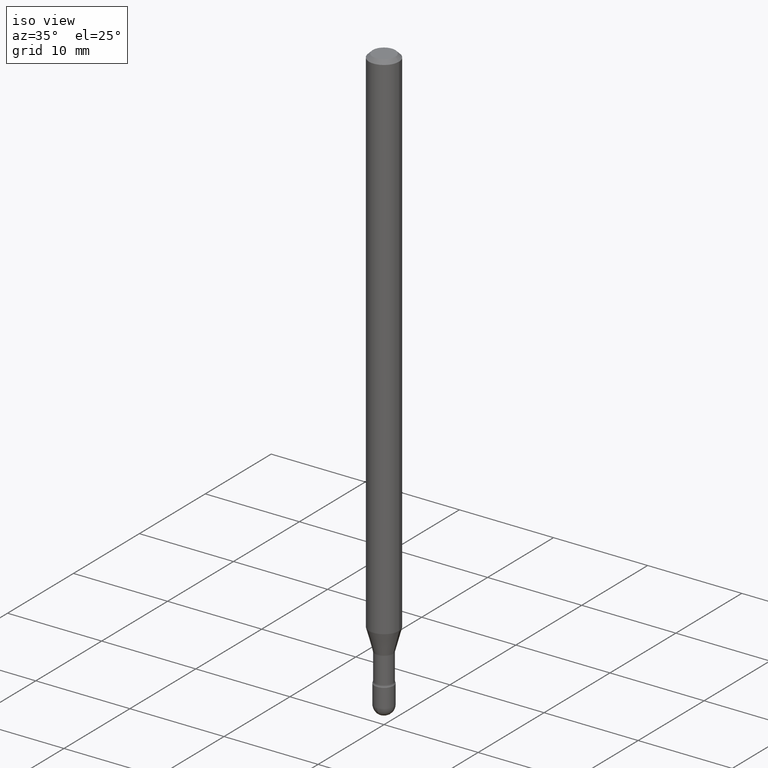
[diagram: clean part render]
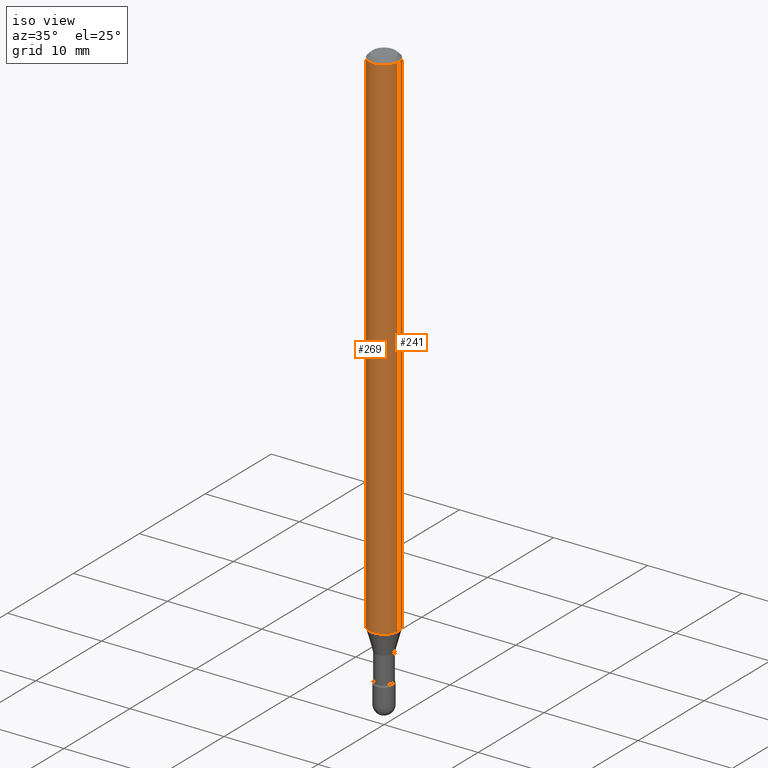
[diagram: same view with one multi-face feature highlighted, each face labeled with its STEP entity id]
A machine part, iso view. The highlighted faces form ONE feature: a constant-radius fillet chain: 2 tangent blend faces with common blend radius 1.5875 mm. The faces share edges in the B-rep.
Their STEP definitions:
[1] entity #269 (Cylinder):
#18 = CYLINDRICAL_SURFACE ( 'NONE', #339, 0.06250000000000000000 ) ;
#21 = ORIENTED_EDGE ( 'NONE', *, *, #127, .F. ) ;
#24 = CARTESIAN_POINT ( 'NONE',  ( -1.169113584055446105E-44, 1.669184350826100908E-30, 4.780733988912460139E-16 ) ) ;
#68 = CARTESIAN_POINT ( 'NONE',  ( -0.06250000000000000000, 4.440892098500642925E-16, 4.780733988912429571E-16 ) ) ;
#78 = DIRECTION ( 'NONE',  ( -2.445468806185136877E-29, 3.491481338843145188E-15, 1.000000000000000000 ) ) ;
#85 = CARTESIAN_POINT ( 'NONE',  ( -0.06250000000000000000, -3.365242510493513525E-15, -0.01500000000000008271 ) ) ;
#120 = DIRECTION ( 'NONE',  ( -2.445468806185136597E-29, 3.491481338843145583E-15, 1.000000000000000000 ) ) ;
#126 = CARTESIAN_POINT ( 'NONE',  ( 5.299506817536516568E-29, -7.566291220604504020E-15, -2.167071934891535712 ) ) ;
#127 = EDGE_CURVE ( 'NONE', #146, #292, #459, .T. ) ;
#129 = VECTOR ( 'NONE', #225, 39.37007874015748143 ) ;
#142 = CIRCLE ( 'NONE', #216, 0.06250000000000000000 ) ;
#146 = VERTEX_POINT ( 'NONE', #367 ) ;
#150 = ORIENTED_EDGE ( 'NONE', *, *, #214, .T. ) ;
#178 = EDGE_CURVE ( 'NONE', #292, #361, #142, .T. ) ;
#203 = DIRECTION ( 'NONE',  ( 1.000000000000000000, -6.982962677686266711E-15, 4.852736867747366207E-29 ) ) ;
#206 = CARTESIAN_POINT ( 'NONE',  ( 3.668203209277725232E-31, -5.237222008264747365E-17, -0.01500000000000008271 ) ) ;
#210 = VECTOR ( 'NONE', #78, 39.37007874015748143 ) ;
#214 = EDGE_CURVE ( 'NONE', #146, #326, #305, .T. ) ;
#216 = AXIS2_PLACEMENT_3D ( 'NONE', #206, #373, #552 ) ;
#225 = DIRECTION ( 'NONE',  ( -2.445468806185136877E-29, 3.491481338843145188E-15, 1.000000000000000000 ) ) ;
#269 = ADVANCED_FACE ( 'NONE', ( #512 ), #18, .T. ) ;
#287 = ORIENTED_EDGE ( 'NONE', *, *, #178, .F. ) ;
#292 = VERTEX_POINT ( 'NONE', #85 ) ;
#296 = DIRECTION ( 'NONE',  ( -2.445468806185136597E-29, 3.491481338843145583E-15, 1.000000000000000000 ) ) ;
#305 = CIRCLE ( 'NONE', #487, 0.06250000000000000000 ) ;
#315 = ORIENTED_EDGE ( 'NONE', *, *, #481, .T. ) ;
#326 = VERTEX_POINT ( 'NONE', #472 ) ;
#328 = EDGE_LOOP ( 'NONE', ( #21, #150, #315, #287 ) ) ;
#339 = AXIS2_PLACEMENT_3D ( 'NONE', #24, #120, #203 ) ;
#361 = VERTEX_POINT ( 'NONE', #563 ) ;
#367 = CARTESIAN_POINT ( 'NONE',  ( -0.06250000000000000000, -7.122202010754441403E-15, -2.167071934891535712 ) ) ;
#373 = DIRECTION ( 'NONE',  ( -2.445468806185136597E-29, 3.491481338843145583E-15, 1.000000000000000000 ) ) ;
#376 = DIRECTION ( 'NONE',  ( 1.000000000000000000, -6.982962677686262766E-15, 0.000000000000000000 ) ) ;
#459 = LINE ( 'NONE', #68, #210 ) ;
#472 = CARTESIAN_POINT ( 'NONE',  ( 0.06250000000000000000, -8.002726387959895689E-15, -2.167071934891535712 ) ) ;
#481 = EDGE_CURVE ( 'NONE', #326, #361, #534, .T. ) ;
#487 = AXIS2_PLACEMENT_3D ( 'NONE', #126, #296, #376 ) ;
#512 = FACE_OUTER_BOUND ( 'NONE', #328, .T. ) ;
#527 = CARTESIAN_POINT ( 'NONE',  ( 0.06250000000000000000, -4.364351673553899931E-16, 4.780733988912490708E-16 ) ) ;
#534 = LINE ( 'NONE', #527, #129 ) ;
#552 = DIRECTION ( 'NONE',  ( 1.000000000000000000, -6.982962677686266711E-15, 0.000000000000000000 ) ) ;
#563 = CARTESIAN_POINT ( 'NONE',  ( 0.06250000000000000000, -4.888073874380391431E-16, -0.01500000000000008271 ) ) ;
[2] entity #241 (Cylinder):
#28 = FACE_OUTER_BOUND ( 'NONE', #500, .T. ) ;
#68 = CARTESIAN_POINT ( 'NONE',  ( -0.06250000000000000000, 4.440892098500642925E-16, 4.780733988912429571E-16 ) ) ;
#69 = EDGE_CURVE ( 'NONE', #326, #146, #355, .T. ) ;
#78 = DIRECTION ( 'NONE',  ( -2.445468806185136877E-29, 3.491481338843145188E-15, 1.000000000000000000 ) ) ;
#85 = CARTESIAN_POINT ( 'NONE',  ( -0.06250000000000000000, -3.365242510493513525E-15, -0.01500000000000008271 ) ) ;
#103 = DIRECTION ( 'NONE',  ( 1.000000000000000000, -6.982962677686262766E-15, 0.000000000000000000 ) ) ;
#127 = EDGE_CURVE ( 'NONE', #146, #292, #459, .T. ) ;
#128 = DIRECTION ( 'NONE',  ( -2.445468806185136597E-29, 3.491481338843145583E-15, 1.000000000000000000 ) ) ;
#129 = VECTOR ( 'NONE', #225, 39.37007874015748143 ) ;
#146 = VERTEX_POINT ( 'NONE', #367 ) ;
#163 = DIRECTION ( 'NONE',  ( 1.000000000000000000, -6.982962677686266711E-15, 4.852736867747366207E-29 ) ) ;
#190 = DIRECTION ( 'NONE',  ( -2.445468806185136597E-29, 3.491481338843145583E-15, 1.000000000000000000 ) ) ;
#195 = AXIS2_PLACEMENT_3D ( 'NONE', #404, #190, #362 ) ;
#207 = AXIS2_PLACEMENT_3D ( 'NONE', #557, #128, #163 ) ;
#210 = VECTOR ( 'NONE', #78, 39.37007874015748143 ) ;
#225 = DIRECTION ( 'NONE',  ( -2.445468806185136877E-29, 3.491481338843145188E-15, 1.000000000000000000 ) ) ;
#241 = ADVANCED_FACE ( 'NONE', ( #28 ), #385, .T. ) ;
#279 = CARTESIAN_POINT ( 'NONE',  ( 5.299506817536516568E-29, -7.566291220604504020E-15, -2.167071934891535712 ) ) ;
#292 = VERTEX_POINT ( 'NONE', #85 ) ;
#326 = VERTEX_POINT ( 'NONE', #472 ) ;
#355 = CIRCLE ( 'NONE', #435, 0.06250000000000000000 ) ;
#361 = VERTEX_POINT ( 'NONE', #563 ) ;
#362 = DIRECTION ( 'NONE',  ( 1.000000000000000000, -6.982962677686266711E-15, 0.000000000000000000 ) ) ;
#367 = CARTESIAN_POINT ( 'NONE',  ( -0.06250000000000000000, -7.122202010754441403E-15, -2.167071934891535712 ) ) ;
#385 = CYLINDRICAL_SURFACE ( 'NONE', #207, 0.06250000000000000000 ) ;
#404 = CARTESIAN_POINT ( 'NONE',  ( 3.668203209277725232E-31, -5.237222008264747365E-17, -0.01500000000000008271 ) ) ;
#417 = ORIENTED_EDGE ( 'NONE', *, *, #501, .F. ) ;
#435 = AXIS2_PLACEMENT_3D ( 'NONE', #279, #538, #103 ) ;
#459 = LINE ( 'NONE', #68, #210 ) ;
#472 = CARTESIAN_POINT ( 'NONE',  ( 0.06250000000000000000, -8.002726387959895689E-15, -2.167071934891535712 ) ) ;
#481 = EDGE_CURVE ( 'NONE', #326, #361, #534, .T. ) ;
#500 = EDGE_LOOP ( 'NONE', ( #539, #550, #417, #556 ) ) ;
#501 = EDGE_CURVE ( 'NONE', #361, #292, #509, .T. ) ;
#509 = CIRCLE ( 'NONE', #195, 0.06250000000000000000 ) ;
#527 = CARTESIAN_POINT ( 'NONE',  ( 0.06250000000000000000, -4.364351673553899931E-16, 4.780733988912490708E-16 ) ) ;
#534 = LINE ( 'NONE', #527, #129 ) ;
#538 = DIRECTION ( 'NONE',  ( -2.445468806185136597E-29, 3.491481338843145583E-15, 1.000000000000000000 ) ) ;
#539 = ORIENTED_EDGE ( 'NONE', *, *, #69, .T. ) ;
#550 = ORIENTED_EDGE ( 'NONE', *, *, #127, .T. ) ;
#556 = ORIENTED_EDGE ( 'NONE', *, *, #481, .F. ) ;
#557 = CARTESIAN_POINT ( 'NONE',  ( -1.169113584055446105E-44, 1.669184350826100908E-30, 4.780733988912460139E-16 ) ) ;
#563 = CARTESIAN_POINT ( 'NONE',  ( 0.06250000000000000000, -4.888073874380391431E-16, -0.01500000000000008271 ) ) ;